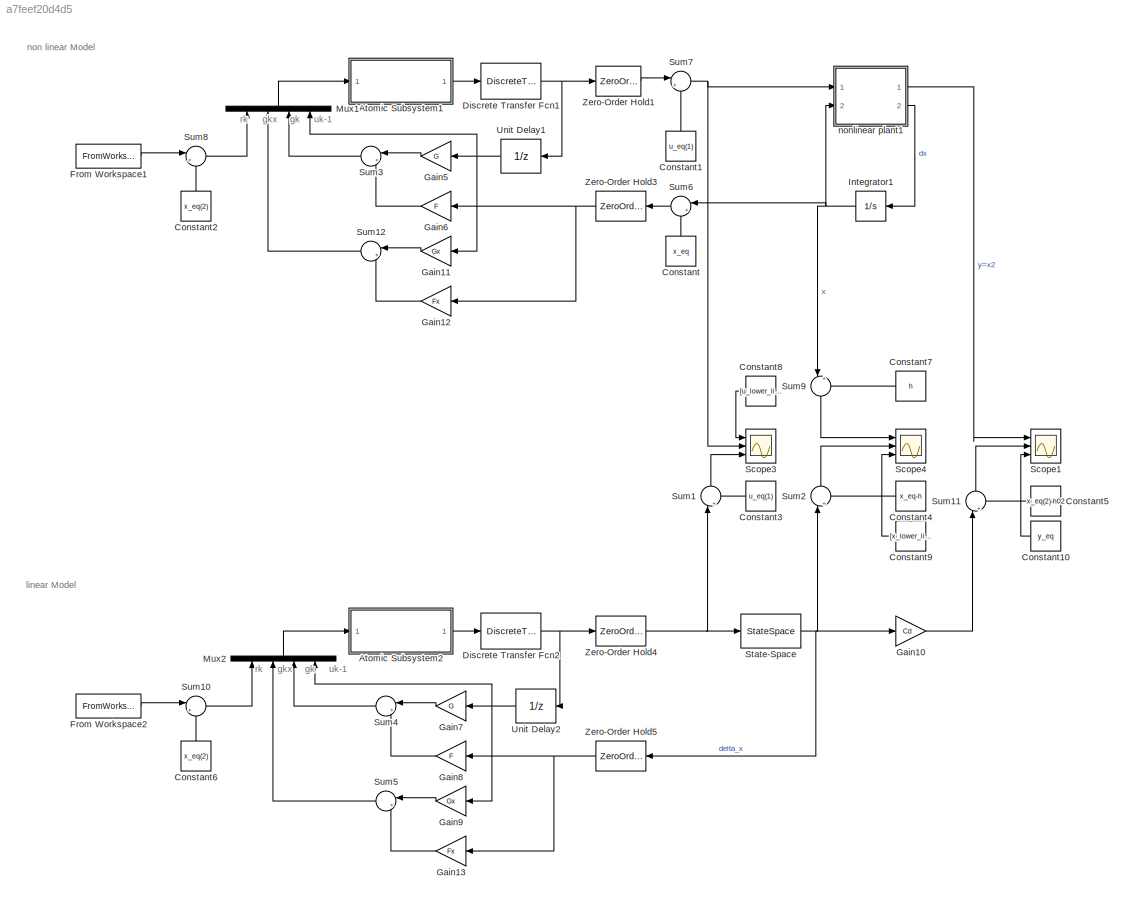
MODEL slx_a7feef20d4d5
KIND model
CONFIG AbsTol = auto
CONFIG EnableMultiTasking = off
CONFIG FixedStep = auto
CONFIG MaxStep = auto
CONFIG MinStep = auto
CONFIG RelTol = 1e-3
CONFIG SampleTimeConstraint = Unconstrained
CONFIG Solver = VariableStepAuto
CONFIG SolverName = VariableStepAuto
CONFIG StartTime = 0.0
CONFIG StopTime = 60
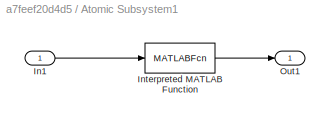
BLOCK [SubSystem] Atomic Subsystem1
  Ports = [1, 1]
  RequestExecContextInheritance = off
  SystemSampleTime = Ts
  TreatAsAtomicUnit = on
BLOCK [Inport] Atomic Subsystem1/In1
  IconDisplay = Port number
BLOCK [MATLABFcn] Atomic Subsystem1/Interpreted MATLAB Function
  MATLABFcn = MPC_softcon_function
  Ports = [1, 1]
BLOCK [Outport] Atomic Subsystem1/Out1
  IconDisplay = Port number
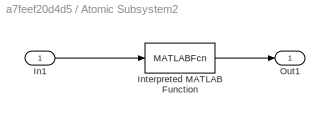
BLOCK [SubSystem] Atomic Subsystem2
  Ports = [1, 1]
  RequestExecContextInheritance = off
  SystemSampleTime = Ts
  TreatAsAtomicUnit = on
BLOCK [Inport] Atomic Subsystem2/In1
  IconDisplay = Port number
BLOCK [MATLABFcn] Atomic Subsystem2/Interpreted MATLAB Function
  MATLABFcn = MPC_softcon_function
  Ports = [1, 1]
BLOCK [Outport] Atomic Subsystem2/Out1
  IconDisplay = Port number
BLOCK [Constant] Constant
  Value = x_eq
BLOCK [Constant] Constant1
  Value = u_eq(1)
BLOCK [Constant] Constant10
  Value = y_eq
BLOCK [Constant] Constant2
  Value = x_eq(2)
BLOCK [Constant] Constant3
  Value = u_eq(1)
BLOCK [Constant] Constant4
  Value = x_eq-h
BLOCK [Constant] Constant5
  Value = x_eq(2)-h02
BLOCK [Constant] Constant6
  Value = x_eq(2)
BLOCK [Constant] Constant7
  Value = h
BLOCK [Constant] Constant8
  Value = [u_lower_limit;u_upper_limit]
BLOCK [Constant] Constant9
  Value = [x_lower_limit(2);x_upper_limit(2)]
BLOCK [DiscreteTransferFcn] Discrete Transfer Fcn1
  Denominator = [1 -1]
  InputPortMap = u0
  Numerator = [1 0]
  Ports = [1, 1]
  SampleTime = Ts
BLOCK [DiscreteTransferFcn] Discrete Transfer Fcn2
  Denominator = [1 -1]
  InputPortMap = u0
  Numerator = [1 0]
  Ports = [1, 1]
  SampleTime = Ts
BLOCK [FromWorkspace] From Workspace1
  SampleTime = 0
  VariableName = r
  ZeroCross = on
BLOCK [FromWorkspace] From Workspace2
  SampleTime = 0
  VariableName = r
  ZeroCross = on
BLOCK [Gain] Gain10
  Gain = Cd
  Multiplication = Matrix(K*u)
  OutDataTypeStr = Inherit: Inherit via internal rule
  ParamDataTypeStr = Inherit: Inherit via internal rule
  SaturateOnIntegerOverflow = off
BLOCK [Gain] Gain11
  Gain = Gx
  Multiplication = Matrix(K*u)
  OutDataTypeStr = Inherit: Inherit via internal rule
  ParamDataTypeStr = Inherit: Inherit via internal rule
  SaturateOnIntegerOverflow = off
BLOCK [Gain] Gain12
  Gain = Fx
  Multiplication = Matrix(K*u)
  OutDataTypeStr = Inherit: Inherit via internal rule
  ParamDataTypeStr = Inherit: Inherit via internal rule
  SaturateOnIntegerOverflow = off
BLOCK [Gain] Gain13
  Gain = Fx
  Multiplication = Matrix(K*u)
  OutDataTypeStr = Inherit: Inherit via internal rule
  ParamDataTypeStr = Inherit: Inherit via internal rule
  SaturateOnIntegerOverflow = off
BLOCK [Gain] Gain5
  Gain = G
  Multiplication = Matrix(K*u)
  OutDataTypeStr = Inherit: Inherit via internal rule
  ParamDataTypeStr = Inherit: Inherit via internal rule
  SaturateOnIntegerOverflow = off
BLOCK [Gain] Gain6
  Gain = F
  Multiplication = Matrix(K*u)
  OutDataTypeStr = Inherit: Inherit via internal rule
  ParamDataTypeStr = Inherit: Inherit via internal rule
  SaturateOnIntegerOverflow = off
BLOCK [Gain] Gain7
  Gain = G
  Multiplication = Matrix(K*u)
  OutDataTypeStr = Inherit: Inherit via internal rule
  ParamDataTypeStr = Inherit: Inherit via internal rule
  SaturateOnIntegerOverflow = off
BLOCK [Gain] Gain8
  Gain = F
  Multiplication = Matrix(K*u)
  OutDataTypeStr = Inherit: Inherit via internal rule
  ParamDataTypeStr = Inherit: Inherit via internal rule
  SaturateOnIntegerOverflow = off
BLOCK [Gain] Gain9
  Gain = Gx
  Multiplication = Matrix(K*u)
  OutDataTypeStr = Inherit: Inherit via internal rule
  ParamDataTypeStr = Inherit: Inherit via internal rule
  SaturateOnIntegerOverflow = off
BLOCK [Integrator] Integrator1
  InitialCondition = x0_nonlin
  Ports = [1, 1]
BLOCK [Mux] Mux1
  DisplayOption = bar
  Ports = [4, 1]
BLOCK [Mux] Mux2
  DisplayOption = bar
  Ports = [4, 1]
BLOCK [Scope] Scope1
  Floating = off
  NumInputPorts = 3
  Ports = [3]
  ScopeSpecificationString = Simulink.scopes.TimeScopeBlockCfg('CurrentConfiguration', extmgr.ConfigurationSet(extmgr.Configuration('Core','General UI',true),extmgr.Configuration('Core','Source UI',true),extmgr.Configuration('Sources','WiredSimulink',true,'DataLoggingVariableName','ScopeData1'),extmgr.Configuration('Visuals','Time Domain',true,'SerializedDisplays',{struct('MinYLimReal','3.74079','MaxYLimReal','16.33287','YLab...<+1705ch>
BLOCK [Scope] Scope3
  Floating = off
  NumInputPorts = 3
  Ports = [3]
  ScopeSpecificationString = Simulink.scopes.TimeScopeBlockCfg('CurrentConfiguration', extmgr.ConfigurationSet(extmgr.Configuration('Core','General UI',true),extmgr.Configuration('Core','Source UI',true),extmgr.Configuration('Sources','WiredSimulink',true),extmgr.Configuration('Visuals','Time Domain',true,'SerializedDisplays',{struct('MinYLimReal','-1.23849','MaxYLimReal','11.14645','YLabelReal','','MinYLimMag','0.00000','Max...<+1742ch>
BLOCK [Scope] Scope4
  Floating = off
  NumInputPorts = 3
  Ports = [3]
  ScopeSpecificationString = Simulink.scopes.TimeScopeBlockCfg('CurrentConfiguration', extmgr.ConfigurationSet(extmgr.Configuration('Core','General UI',true),extmgr.Configuration('Core','Source UI',true),extmgr.Configuration('Sources','WiredSimulink',true,'DataLoggingVariableName','ScopeData3'),extmgr.Configuration('Visuals','Time Domain',true,'SerializedDisplays',{struct('MinYLimReal','-3.04488','MaxYLimReal','27.40395','YLa...<+1989ch>
BLOCK [StateSpace] State-Space
  A = A
  B = B
  C = eye(n)
  D = [0;0]
  InitialCondition = x0_linear
  Ports = [1, 1]
BLOCK [Sum] Sum1
  IconShape = round
  InputSameDT = off
  Inputs = |++
  OutDataTypeStr = Inherit: Inherit via internal rule
  Ports = [2, 1]
  SaturateOnIntegerOverflow = off
BLOCK [Sum] Sum10
  IconShape = round
  InputSameDT = off
  Inputs = |+-
  OutDataTypeStr = Inherit: Inherit via internal rule
  Ports = [2, 1]
  SaturateOnIntegerOverflow = off
BLOCK [Sum] Sum11
  IconShape = round
  InputSameDT = off
  Inputs = |++
  OutDataTypeStr = Inherit: Inherit via internal rule
  Ports = [2, 1]
  SaturateOnIntegerOverflow = off
BLOCK [Sum] Sum12
  IconShape = round
  InputSameDT = off
  Inputs = |++
  OutDataTypeStr = Inherit: Inherit via internal rule
  Ports = [2, 1]
  SaturateOnIntegerOverflow = off
BLOCK [Sum] Sum2
  IconShape = round
  InputSameDT = off
  Inputs = |++
  OutDataTypeStr = Inherit: Inherit via internal rule
  Ports = [2, 1]
  SaturateOnIntegerOverflow = off
BLOCK [Sum] Sum3
  IconShape = round
  InputSameDT = off
  Inputs = |++
  OutDataTypeStr = Inherit: Inherit via internal rule
  Ports = [2, 1]
  SaturateOnIntegerOverflow = off
BLOCK [Sum] Sum4
  IconShape = round
  InputSameDT = off
  Inputs = |++
  OutDataTypeStr = Inherit: Inherit via internal rule
  Ports = [2, 1]
  SaturateOnIntegerOverflow = off
BLOCK [Sum] Sum5
  IconShape = round
  InputSameDT = off
  Inputs = |++
  OutDataTypeStr = Inherit: Inherit via internal rule
  Ports = [2, 1]
  SaturateOnIntegerOverflow = off
BLOCK [Sum] Sum6
  IconShape = round
  InputSameDT = off
  Inputs = |+-
  OutDataTypeStr = Inherit: Inherit via internal rule
  Ports = [2, 1]
  SaturateOnIntegerOverflow = off
BLOCK [Sum] Sum7
  IconShape = round
  InputSameDT = off
  Inputs = |++
  OutDataTypeStr = Inherit: Inherit via internal rule
  Ports = [2, 1]
  SaturateOnIntegerOverflow = off
BLOCK [Sum] Sum8
  IconShape = round
  InputSameDT = off
  Inputs = |+-
  OutDataTypeStr = Inherit: Inherit via internal rule
  Ports = [2, 1]
  SaturateOnIntegerOverflow = off
BLOCK [Sum] Sum9
  IconShape = round
  InputSameDT = off
  Inputs = |+-
  OutDataTypeStr = Inherit: Inherit via internal rule
  Ports = [2, 1]
  SaturateOnIntegerOverflow = off
BLOCK [UnitDelay] Unit Delay1
  InputProcessing = Elements as channels (sample based)
  SampleTime = Ts
BLOCK [UnitDelay] Unit Delay2
  InputProcessing = Elements as channels (sample based)
  SampleTime = Ts
BLOCK [ZeroOrderHold] Zero-Order Hold1
  SampleTime = Ts
BLOCK [ZeroOrderHold] Zero-Order Hold3
  SampleTime = Ts
BLOCK [ZeroOrderHold] Zero-Order Hold4
  SampleTime = Ts
BLOCK [ZeroOrderHold] Zero-Order Hold5
  SampleTime = Ts
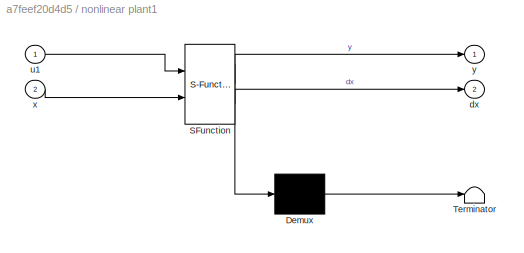
BLOCK [SubSystem] nonlinear plant1
  ErrorFcn = Stateflow.Translate.translate
  PermitHierarchicalResolution = ExplicitOnly
  Ports = [2, 2]
  RequestExecContextInheritance = off
  SFBlockType = MATLAB Function
  TreatAsAtomicUnit = on
BLOCK [Demux] nonlinear plant1/ Demux 
  Outputs = 1
  Ports = [1, 1]
BLOCK [S-Function] nonlinear plant1/ SFunction 
  EnableBusSupport = on
  FunctionName = sf_sfun
  Parameters = alpha,beta,gamma,h,k
  PortCounts = [2 3]
  Ports = [2, 3]
  SFcnIsStateOwnerBlock = off
  SFunctionDeploymentMode = off
  Tag = Stateflow S-Function task7_soft_constraint_mpc 1
BLOCK [Terminator] nonlinear plant1/ Terminator 
BLOCK [Outport] nonlinear plant1/dx
  IconDisplay = Port number
  Port = 2
BLOCK [Inport] nonlinear plant1/u1
  IconDisplay = Port number
BLOCK [Inport] nonlinear plant1/x
  IconDisplay = Port number
  Port = 2
BLOCK [Outport] nonlinear plant1/y
  IconDisplay = Port number
ANNOTATION (root): gk
ANNOTATION (root): gkx
ANNOTATION (root): linear Model
ANNOTATION (root): non linear Model
ANNOTATION (root): rk
ANNOTATION (root): uk-1
LINE Atomic Subsystem1/In1:1 -> Atomic Subsystem1/Interpreted MATLAB Function:1
LINE Atomic Subsystem1/Interpreted MATLAB Function:1 -> Atomic Subsystem1/Out1:1
LINE Atomic Subsystem1:1 -> Discrete Transfer Fcn1:1
LINE Atomic Subsystem2/In1:1 -> Atomic Subsystem2/Interpreted MATLAB Function:1
LINE Atomic Subsystem2/Interpreted MATLAB Function:1 -> Atomic Subsystem2/Out1:1
LINE Atomic Subsystem2:1 -> Discrete Transfer Fcn2:1
LINE Constant10:1 -> Scope1:3
LINE Constant1:1 -> Sum7:2
LINE Constant2:1 -> Sum8:2
LINE Constant3:1 -> Sum1:2
LINE Constant4:1 -> Sum2:2
LINE Constant5:1 -> Sum11:2
LINE Constant6:1 -> Sum10:2
LINE Constant7:1 -> Sum9:2
LINE Constant8:1 -> Scope3:1
LINE Constant9:1 -> Scope4:3
LINE Constant:1 -> Sum6:2
NET Discrete Transfer Fcn1:1 -> Unit Delay1:1, Zero-Order Hold1:1
NET Discrete Transfer Fcn2:1 -> Unit Delay2:1, Zero-Order Hold4:1
LINE From Workspace1:1 -> Sum8:1
LINE From Workspace2:1 -> Sum10:1
LINE Gain10:1 -> Sum11:1
LINE Gain11:1 -> Sum12:1
LINE Gain12:1 -> Sum12:2
LINE Gain13:1 -> Sum5:2
LINE Gain5:1 -> Sum3:1
LINE Gain6:1 -> Sum3:2
LINE Gain7:1 -> Sum4:1
LINE Gain8:1 -> Sum4:2
LINE Gain9:1 -> Sum5:1
NET Integrator1:1 -> Sum6:1, Sum9:1, nonlinear plant1:2
LINE Mux1:1 -> Atomic Subsystem1:1
LINE Mux2:1 -> Atomic Subsystem2:1
NET State-Space:1 -> Gain10:1, Sum2:1, Zero-Order Hold5:1
LINE Sum10:1 -> Mux2:1
LINE Sum11:1 -> Scope1:2
LINE Sum12:1 -> Mux1:2
LINE Sum1:1 -> Scope3:3
LINE Sum2:1 -> Scope4:2
LINE Sum3:1 -> Mux1:3
LINE Sum4:1 -> Mux2:3
LINE Sum5:1 -> Mux2:2
LINE Sum6:1 -> Zero-Order Hold3:1
NET Sum7:1 -> Scope3:2, nonlinear plant1:1
LINE Sum8:1 -> Mux1:1
LINE Sum9:1 -> Scope4:1
NET Unit Delay1:1 -> Gain11:1, Gain5:1, Mux1:4
NET Unit Delay2:1 -> Gain7:1, Gain9:1, Mux2:4
LINE Zero-Order Hold1:1 -> Sum7:1
NET Zero-Order Hold3:1 -> Gain12:1, Gain6:1
NET Zero-Order Hold4:1 -> State-Space:1, Sum1:1
NET Zero-Order Hold5:1 -> Gain13:1, Gain8:1
LINE nonlinear plant1:1 -> Scope1:1
LINE nonlinear plant1:2 -> Integrator1:1
note: NET lines group one-source signal fan-out (src -> all destinations, sorted); 1:1 wires keep LINE
CHART nonlinear plant1 states=1 transitions=1
  STATE_LABEL 'eML_blk_kernel()'
  STATE_LABEL 'SCRIPT:\nfunction [y, dx]= fcn(u1,x,k,alpha, beta, gamma,h)\n    \n    % calculate input quantity\n    if (beta(1)+gamma(1)*u1) <= 0\n        zp1 = 0;\n    else\n        zp1 = alpha(1) + sqrt( beta(1)+gamma(1)*u1 );\n    end\n    \n    % nonlinear plant description\n   dx1 = -k(1)*sqrt(x(1)) + zp1;\n   dx2 = -k(2)*sqrt(x(2)) + k(1)*sqrt(x(1));\n   \n   dx = [dx1; dx2];\n   y = x(2)-h(2);\n\nend\n'
